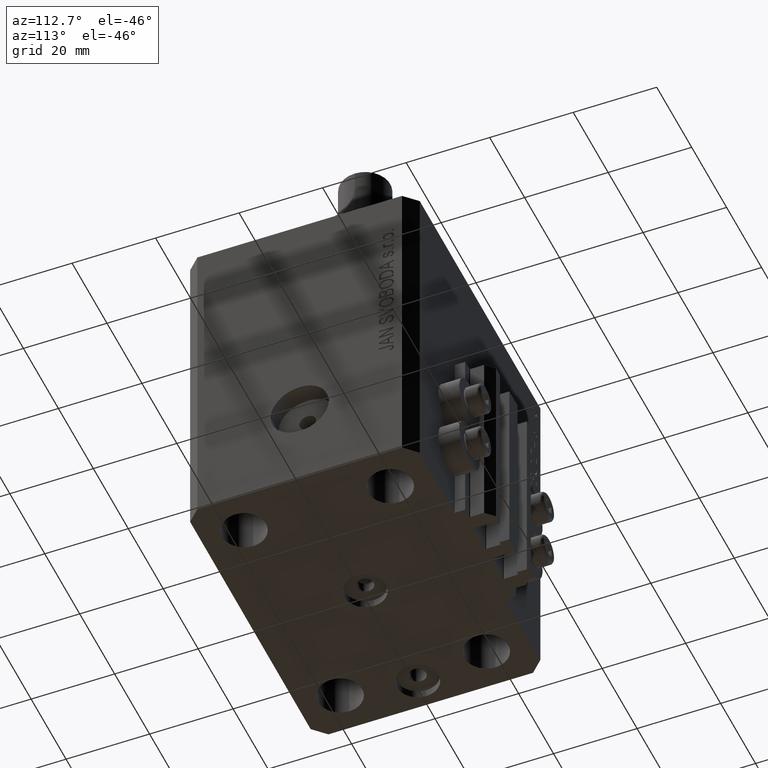
[diagram: clean part render]
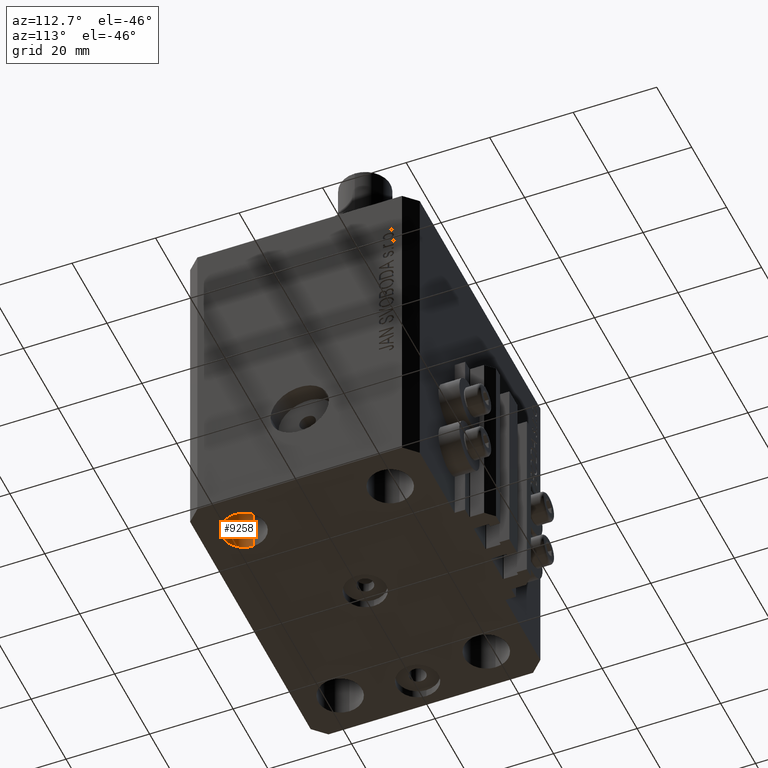
[diagram: same view with one face highlighted and labeled with its STEP entity id]
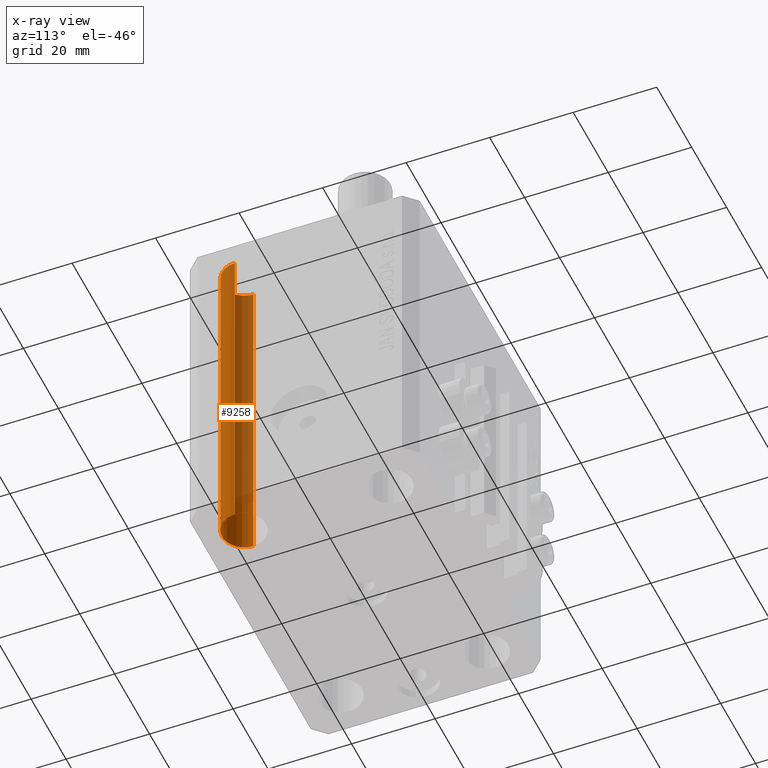
[diagram: x-ray of the same camera — body ghosted, the highlighted face saturated]
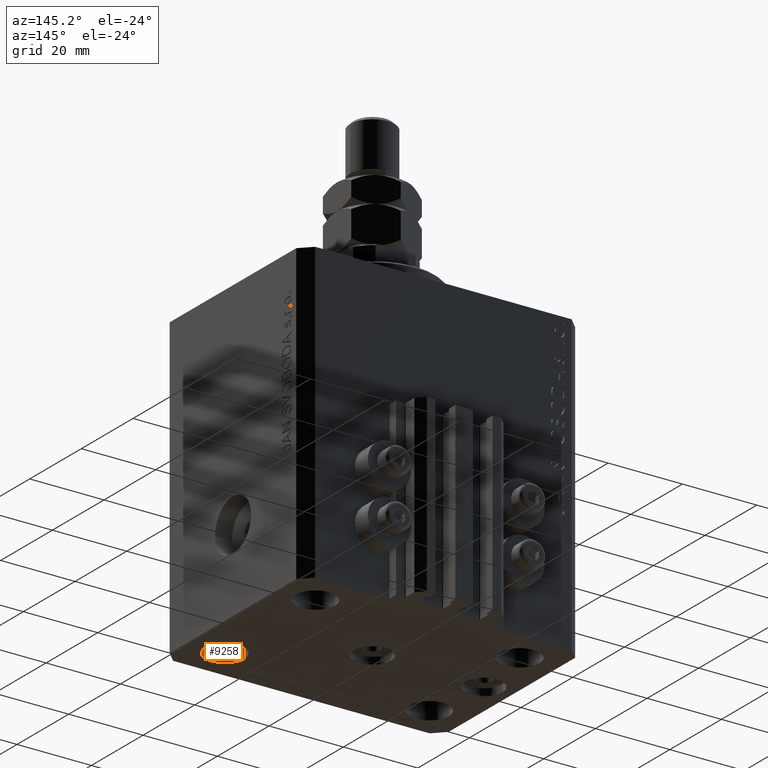
[diagram: same view with one face highlighted and labeled with its STEP entity id]
A machine part, auxiliary view. The second image highlights one B-rep face of the part: STEP entity #9258.
The next image is the same camera in x-ray: the body ghosted, the highlighted face saturated — about 45% of this face is hidden behind the body in this view.
A second angle (auxiliary view) of the same face is appended — the face is thin or edge-on in the first view.
In plain terms, the highlighted cylindrical surface (edge-blend (fillet) strip) has radius 5.25 mm, axis along (0, 0, 1).
Its self-contained STEP definition (entity closure, byte-faithful):
#1640 = VERTEX_POINT ( 'NONE', #8583 ) ;
#2089 = CARTESIAN_POINT ( 'NONE',  ( 27.49999999999999289, -17.50000000000000000, -80.00000000000000000 ) ) ;
#3079 = CARTESIAN_POINT ( 'NONE',  ( 32.74999999999999289, -17.50000000000000000, -94.84924240491750425 ) ) ;
#3135 = DIRECTION ( 'NONE',  ( 0.000000000000000000, 0.000000000000000000, 1.000000000000000000 ) ) ;
#3496 = CARTESIAN_POINT ( 'NONE',  ( 32.74999999999999289, -17.50000000000000000, -80.00000000000000000 ) ) ;
#6889 = CARTESIAN_POINT ( 'NONE',  ( 27.49999999999999289, -17.50000000000000000, -94.84924240491750425 ) ) ;
#7777 = ORIENTED_EDGE ( 'NONE', *, *, #34184, .T. ) ;
#8583 = CARTESIAN_POINT ( 'NONE',  ( 22.24999999999999289, -17.50000000000000000, 0.000000000000000000 ) ) ;
#8790 = DIRECTION ( 'NONE',  ( -0.000000000000000000, -0.000000000000000000, 1.000000000000000000 ) ) ;
#9258 = ADVANCED_FACE ( 'NONE', ( #32936 ), #40855, .F. ) ;
#10634 = EDGE_CURVE ( 'NONE', #19372, #15097, #29043, .T. ) ;
#12669 = CARTESIAN_POINT ( 'NONE',  ( 32.74999999999999289, -17.50000000000000000, 0.000000000000000000 ) ) ;
#13576 = CARTESIAN_POINT ( 'NONE',  ( 22.24999999999999289, -17.50000000000000000, -80.00000000000000000 ) ) ;
#15097 = VERTEX_POINT ( 'NONE', #13576 ) ;
#15568 = EDGE_CURVE ( 'NONE', #19372, #45314, #47975, .T. ) ;
#17786 = DIRECTION ( 'NONE',  ( -0.000000000000000000, -0.000000000000000000, 1.000000000000000000 ) ) ;
#18032 = AXIS2_PLACEMENT_3D ( 'NONE', #40363, #3135, #28958 ) ;
#19372 = VERTEX_POINT ( 'NONE', #3496 ) ;
#22143 = ORIENTED_EDGE ( 'NONE', *, *, #36889, .T. ) ;
#24152 = CARTESIAN_POINT ( 'NONE',  ( 22.24999999999999289, -17.50000000000000000, -94.84924240491750425 ) ) ;
#24440 = DIRECTION ( 'NONE',  ( 1.000000000000000000, 0.000000000000000000, 0.000000000000000000 ) ) ;
#24922 = DIRECTION ( 'NONE',  ( -0.000000000000000000, -0.000000000000000000, -1.000000000000000000 ) ) ;
#25769 = VECTOR ( 'NONE', #47492, 1000.000000000000000 ) ;
#25970 = VECTOR ( 'NONE', #8790, 1000.000000000000000 ) ;
#28958 = DIRECTION ( 'NONE',  ( 1.000000000000000000, 0.000000000000000000, 0.000000000000000000 ) ) ;
#29043 = CIRCLE ( 'NONE', #39297, 5.250000000000000888 ) ;
#31091 = ORIENTED_EDGE ( 'NONE', *, *, #10634, .T. ) ;
#32936 = FACE_OUTER_BOUND ( 'NONE', #47395, .T. ) ;
#34184 = EDGE_CURVE ( 'NONE', #1640, #45314, #39428, .T. ) ;
#36889 = EDGE_CURVE ( 'NONE', #15097, #1640, #42757, .T. ) ;
#36928 = AXIS2_PLACEMENT_3D ( 'NONE', #6889, #17786, #41103 ) ;
#39297 = AXIS2_PLACEMENT_3D ( 'NONE', #2089, #24922, #24440 ) ;
#39428 = CIRCLE ( 'NONE', #18032, 5.250000000000000888 ) ;
#40363 = CARTESIAN_POINT ( 'NONE',  ( 27.49999999999999289, -17.50000000000000000, 0.000000000000000000 ) ) ;
#40855 = CYLINDRICAL_SURFACE ( 'NONE', #36928, 5.250000000000000888 ) ;
#41103 = DIRECTION ( 'NONE',  ( 1.000000000000000000, 0.000000000000000000, 0.000000000000000000 ) ) ;
#42757 = LINE ( 'NONE', #24152, #25970 ) ;
#45314 = VERTEX_POINT ( 'NONE', #12669 ) ;
#46030 = ORIENTED_EDGE ( 'NONE', *, *, #15568, .F. ) ;
#47395 = EDGE_LOOP ( 'NONE', ( #31091, #22143, #7777, #46030 ) ) ;
#47492 = DIRECTION ( 'NONE',  ( -0.000000000000000000, -0.000000000000000000, 1.000000000000000000 ) ) ;
#47975 = LINE ( 'NONE', #3079, #25769 ) ;